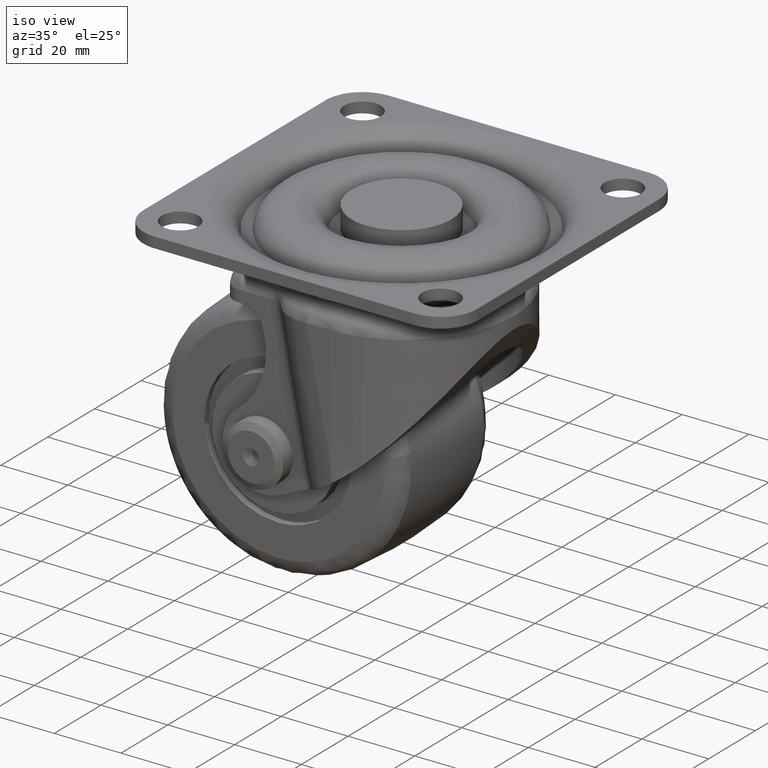
[diagram: clean part render]
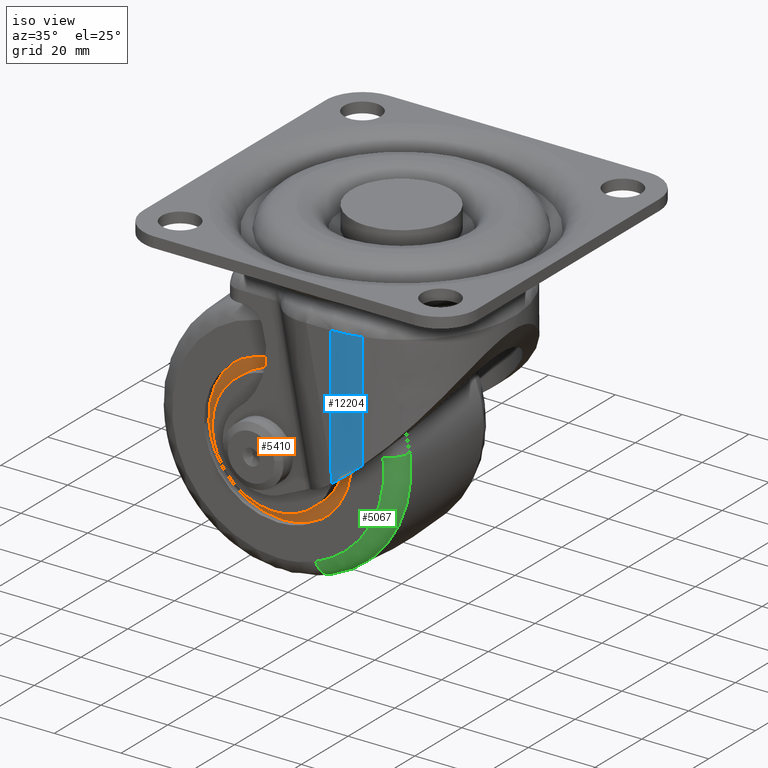
[diagram: same view with three faces highlighted in distinct colors, each labeled with its STEP entity id]
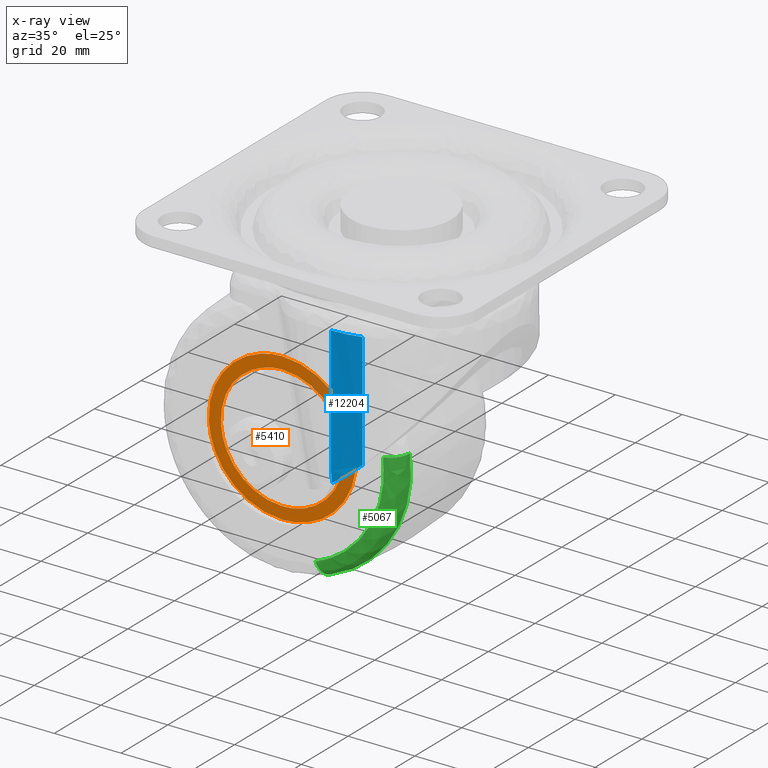
[diagram: x-ray of the same camera — body ghosted, the three highlighted faces saturated]
A machine part, iso view with three faces highlighted in distinct colors.
The next image is the same camera in x-ray (body ghosted, the three faces saturated) — at least one of them is partly hidden behind the body in this view.
Their STEP definitions:

[orange] entity #5410 — the highlighted face is a freeform B-spline surface patch.
#4107=CARTESIAN_POINT('',(21.965375127989400,-18.000000000001990,-59.889111314921713));
#4108=VERTEX_POINT('',#4107);
#4109=CARTESIAN_POINT('',(0.0,-18.0,-84.620001000000002));
#4110=VERTEX_POINT('',#4109);
#4111=CARTESIAN_POINT('',(21.965375127989407,-18.000000000001990,-59.889111314921706));
#4112=CARTESIAN_POINT('',(22.120001000000002,-18.000000000000007,-61.189976917579735));
#4113=CARTESIAN_POINT('',(22.120000999999998,-18.0,-62.500000000000000));
#4114=CARTESIAN_POINT('',(22.120000999999998,-18.000000000000007,-84.620001000000002));
#4115=CARTESIAN_POINT('',(0.0,-18.0,-84.620001000000002));
#4123=(BOUNDED_CURVE()B_SPLINE_CURVE(2,(#4111,#4112,#4113,#4114,#4115),.UNSPECIFIED.,.F.,.U.)B_SPLINE_CURVE_WITH_KNOTS((3,2,3),(0.229562694363073,0.250000000000000,0.500000000000000),.UNSPECIFIED.)CURVE()GEOMETRIC_REPRESENTATION_ITEM()RATIONAL_B_SPLINE_CURVE((0.956027187058341,0.976056207072504,1.0,0.707106781186547,1.0))REPRESENTATION_ITEM(''));
#4124=EDGE_CURVE('',#4108,#4110,#4123,.T.);
#4126=CARTESIAN_POINT('',(-22.078744948460709,-18.000000000000529,-63.850357633929683));
#4127=VERTEX_POINT('',#4126);
#4128=CARTESIAN_POINT('',(0.0,-18.0,-84.620001000000002));
#4129=CARTESIAN_POINT('',(-20.808453247633278,-18.000000000000004,-84.620001000000016));
#4130=CARTESIAN_POINT('',(-22.078744948460713,-18.000000000000536,-63.850357633929661));
#4138=(BOUNDED_CURVE()B_SPLINE_CURVE(2,(#4128,#4129,#4130),.UNSPECIFIED.,.F.,.U.)B_SPLINE_CURVE_WITH_KNOTS((3,3),(0.500000000000000,0.739333244534881),.UNSPECIFIED.)CURVE()GEOMETRIC_REPRESENTATION_ITEM()RATIONAL_B_SPLINE_CURVE((1.0,0.719603662556446,0.976072646681396))REPRESENTATION_ITEM(''));
#4139=EDGE_CURVE('',#4110,#4127,#4138,.T.);
#4206=CARTESIAN_POINT('',(0.0,-18.0,-40.379998999999998));
#4207=VERTEX_POINT('',#4206);
#4208=CARTESIAN_POINT('',(0.0,-18.0,-40.379998999999998));
#4209=CARTESIAN_POINT('',(19.646447256203256,-18.000000000000004,-40.379998999999991));
#4210=CARTESIAN_POINT('',(21.965375127989407,-18.000000000001990,-59.889111314921706));
#4218=(BOUNDED_CURVE()B_SPLINE_CURVE(2,(#4208,#4209,#4210),.UNSPECIFIED.,.F.,.U.)B_SPLINE_CURVE_WITH_KNOTS((3,3),(0.0,0.229562694363073),.UNSPECIFIED.)CURVE()GEOMETRIC_REPRESENTATION_ITEM()RATIONAL_B_SPLINE_CURVE((1.0,0.731050574114043,0.956027187058341))REPRESENTATION_ITEM(''));
#4219=EDGE_CURVE('',#4207,#4108,#4218,.T.);
#4253=CARTESIAN_POINT('',(-22.078744948460713,-18.000000000000536,-63.850357633929661));
#4254=CARTESIAN_POINT('',(-22.120001000000009,-18.000000000000004,-63.175809043264096));
#4255=CARTESIAN_POINT('',(-22.120000999999998,-18.0,-62.500000000000000));
#4256=CARTESIAN_POINT('',(-22.120000999999998,-18.000000000000007,-40.379998999999991));
#4257=CARTESIAN_POINT('',(0.0,-18.0,-40.379998999999998));
#4265=(BOUNDED_CURVE()B_SPLINE_CURVE(2,(#4253,#4254,#4255,#4256,#4257),.UNSPECIFIED.,.F.,.U.)B_SPLINE_CURVE_WITH_KNOTS((3,2,3),(0.739333244534881,0.750000000000000,1.0),.UNSPECIFIED.)CURVE()GEOMETRIC_REPRESENTATION_ITEM()RATIONAL_B_SPLINE_CURVE((0.976072646681396,0.987503118630101,1.0,0.707106781186547,1.0))REPRESENTATION_ITEM(''));
#4266=EDGE_CURVE('',#4127,#4207,#4265,.T.);
#4669=CARTESIAN_POINT('',(18.370676382133698,-18.000000000000011,-60.316367873721930));
#4670=VERTEX_POINT('',#4669);
#4671=CARTESIAN_POINT('',(0.0,-18.0,-81.0));
#4672=VERTEX_POINT('',#4671);
#4673=CARTESIAN_POINT('',(18.370676382133741,-18.000000000000004,-60.316367873721916));
#4674=CARTESIAN_POINT('',(18.500000000000007,-18.0,-61.404354400297372));
#4675=CARTESIAN_POINT('',(18.500000000000000,-18.0,-62.500000000000000));
#4676=CARTESIAN_POINT('',(18.500000000000000,-18.000000000000007,-81.0));
#4677=CARTESIAN_POINT('',(0.0,-18.0,-81.0));
#4685=(BOUNDED_CURVE()B_SPLINE_CURVE(2,(#4673,#4674,#4675,#4676,#4677),.UNSPECIFIED.,.F.,.U.)B_SPLINE_CURVE_WITH_KNOTS((3,2,3),(0.229562484692005,0.250000000000000,0.500000000000000),.UNSPECIFIED.)CURVE()GEOMETRIC_REPRESENTATION_ITEM()RATIONAL_B_SPLINE_CURVE((0.956026776094012,0.976055961427569,1.0,0.707106781186548,1.0))REPRESENTATION_ITEM(''));
#4686=EDGE_CURVE('',#4670,#4672,#4685,.T.);
#4727=CARTESIAN_POINT('',(-18.465495261800470,-17.999999999998941,-63.629373603298710));
#4728=VERTEX_POINT('',#4727);
#4734=CARTESIAN_POINT('',(0.0,-18.0,-81.0));
#4735=CARTESIAN_POINT('',(-17.403085256178599,-17.999999999999996,-80.999999999999986));
#4736=CARTESIAN_POINT('',(-18.465495261800463,-17.999999999998934,-63.629373603298710));
#4744=(BOUNDED_CURVE()B_SPLINE_CURVE(2,(#4734,#4735,#4736),.UNSPECIFIED.,.F.,.U.)B_SPLINE_CURVE_WITH_KNOTS((3,3),(0.500000000000000,0.739333190037824),.UNSPECIFIED.)CURVE()GEOMETRIC_REPRESENTATION_ITEM()RATIONAL_B_SPLINE_CURVE((1.0,0.719603726403721,0.976072529883568))REPRESENTATION_ITEM(''));
#4745=EDGE_CURVE('',#4672,#4728,#4744,.T.);
#4768=CARTESIAN_POINT('',(0.0,-18.0,-44.0));
#4769=VERTEX_POINT('',#4768);
#4770=CARTESIAN_POINT('',(0.0,-18.0,-44.0));
#4771=CARTESIAN_POINT('',(16.431229824364024,-18.000000000000004,-44.0));
#4772=CARTESIAN_POINT('',(18.370676382133741,-18.000000000000004,-60.316367873721916));
#4780=(BOUNDED_CURVE()B_SPLINE_CURVE(2,(#4770,#4771,#4772),.UNSPECIFIED.,.F.,.U.)B_SPLINE_CURVE_WITH_KNOTS((3,3),(0.0,0.229562484692005),.UNSPECIFIED.)CURVE()GEOMETRIC_REPRESENTATION_ITEM()RATIONAL_B_SPLINE_CURVE((1.0,0.731050819758979,0.956026776094012))REPRESENTATION_ITEM(''));
#4781=EDGE_CURVE('',#4769,#4670,#4780,.T.);
#4783=CARTESIAN_POINT('',(-18.465495261800463,-17.999999999998934,-63.629373603298710));
#4784=CARTESIAN_POINT('',(-18.500000000000004,-17.999999999999996,-63.065213897800156));
#4785=CARTESIAN_POINT('',(-18.500000000000000,-18.0,-62.500000000000000));
#4786=CARTESIAN_POINT('',(-18.500000000000000,-18.000000000000007,-43.999999999999993));
#4787=CARTESIAN_POINT('',(0.0,-18.0,-44.0));
#4795=(BOUNDED_CURVE()B_SPLINE_CURVE(2,(#4783,#4784,#4785,#4786,#4787),.UNSPECIFIED.,.F.,.U.)B_SPLINE_CURVE_WITH_KNOTS((3,2,3),(0.739333190037824,0.750000000000000,1.0),.UNSPECIFIED.)CURVE()GEOMETRIC_REPRESENTATION_ITEM()RATIONAL_B_SPLINE_CURVE((0.976072529883568,0.987503054782827,1.0,0.707106781186548,1.0))REPRESENTATION_ITEM(''));
#4796=EDGE_CURVE('',#4728,#4769,#4795,.T.);
#5393=CARTESIAN_POINT('',(-24.329252294165212,-18.0,-38.170208909378282));
#5394=CARTESIAN_POINT('',(-24.329252294165212,-18.0,-86.829790299548847));
#5395=CARTESIAN_POINT('',(24.329386776555019,-18.0,-38.170208909378282));
#5396=CARTESIAN_POINT('',(24.329386776555019,-18.0,-86.829790299548847));
#5397=B_SPLINE_SURFACE_WITH_KNOTS('',1,1,((#5393,#5395),(#5394,#5396)),.UNSPECIFIED.,.F.,.F.,.U.,(2,2),(2,2),(0.0,48.659581390170572),(0.0,48.658639070720227),.UNSPECIFIED.);
#5398=ORIENTED_EDGE('',*,*,#4266,.F.);
#5399=ORIENTED_EDGE('',*,*,#4139,.F.);
#5400=ORIENTED_EDGE('',*,*,#4124,.F.);
#5401=ORIENTED_EDGE('',*,*,#4219,.F.);
#5402=EDGE_LOOP('',(#5398,#5399,#5400,#5401));
#5403=FACE_OUTER_BOUND('',#5402,.T.);
#5404=ORIENTED_EDGE('',*,*,#4745,.T.);
#5405=ORIENTED_EDGE('',*,*,#4796,.T.);
#5406=ORIENTED_EDGE('',*,*,#4781,.T.);
#5407=ORIENTED_EDGE('',*,*,#4686,.T.);
#5408=EDGE_LOOP('',(#5404,#5405,#5406,#5407));
#5409=FACE_BOUND('',#5408,.T.);
#5410=ADVANCED_FACE('',(#5403,#5409),#5397,.T.);

[blue] entity #12204 — the highlighted face is a freeform B-spline surface patch.
#11678=CARTESIAN_POINT('',(16.846150713636799,-31.608555000000450,-27.884508667319949));
#11679=VERTEX_POINT('',#11678);
#11730=CARTESIAN_POINT('',(8.384951359813460,-32.873505000000037,-26.239818121248199));
#11731=VERTEX_POINT('',#11730);
#11745=CARTESIAN_POINT('',(16.846150713636810,-31.608555000000429,-27.884508667319899));
#11746=CARTESIAN_POINT('',(12.706663533629607,-32.873505000000051,-27.079873869598469));
#11747=CARTESIAN_POINT('',(8.384951359813460,-32.873505000000037,-26.239818121248199));
#11755=(BOUNDED_CURVE()B_SPLINE_CURVE(2,(#11745,#11746,#11747),.UNSPECIFIED.,.F.,.U.)CURVE()GEOMETRIC_REPRESENTATION_ITEM()QUASI_UNIFORM_CURVE()RATIONAL_B_SPLINE_CURVE((1.0,0.989402597530452,1.0))REPRESENTATION_ITEM(''));
#11756=EDGE_CURVE('',#11679,#11731,#11755,.T.);
#12153=CARTESIAN_POINT('',(9.180237254773138,-31.480779292694891,-69.497307128945096));
#12154=CARTESIAN_POINT('',(17.455385613322715,-31.480779292694891,-26.925359408218792));
#12155=CARTESIAN_POINT('',(4.642362051979773,-32.940729517618010,-68.615233544197707));
#12156=CARTESIAN_POINT('',(12.917510410529344,-32.940729517618010,-26.043285823471418));
#12157=CARTESIAN_POINT('',(-0.115934905980662,-32.870342762016385,-67.690314310540288));
#12158=CARTESIAN_POINT('',(8.159213452568912,-32.870342762016385,-25.118366589814016));
#12166=(BOUNDED_SURFACE()B_SPLINE_SURFACE(1,2,((#12153,#12155,#12157),(#12154,#12156,#12158)),.UNSPECIFIED.,.F.,.F.,.U.)B_SPLINE_SURFACE_WITH_KNOTS((2,2),(3,3),(0.0,43.368753879864457),(0.0,9.633245544133651),.UNSPECIFIED.)GEOMETRIC_REPRESENTATION_ITEM()RATIONAL_B_SPLINE_SURFACE(((0.998901637062796,0.984527455242017,0.995699260660137),(0.998901637062796,0.984527455242017,0.995699260660137)))REPRESENTATION_ITEM('')SURFACE());
#12167=CARTESIAN_POINT('',(10.225160935657501,-31.608555000000411,-61.946548219321699));
#12168=VERTEX_POINT('',#12167);
#12169=CARTESIAN_POINT('',(16.846150713636799,-31.608555000000450,-27.884508667319949));
#12170=CARTESIAN_POINT('',(10.225160935657501,-31.608555000000411,-61.946548219321699));
#12171=QUASI_UNIFORM_CURVE('',1,(#12169,#12170),.UNSPECIFIED.,.F.,.U.);
#12172=EDGE_CURVE('',#11679,#12168,#12171,.T.);
#12173=ORIENTED_EDGE('',*,*,#12172,.F.);
#12174=ORIENTED_EDGE('',*,*,#11756,.T.);
#12175=CARTESIAN_POINT('',(1.126497264450048,-32.873505000000037,-63.581327287286094));
#12176=VERTEX_POINT('',#12175);
#12177=CARTESIAN_POINT('',(1.126497264450048,-32.873505000000037,-63.581327287286094));
#12178=CARTESIAN_POINT('',(8.384951359813460,-32.873505000000037,-26.239818121248199));
#12179=QUASI_UNIFORM_CURVE('',1,(#12177,#12178),.UNSPECIFIED.,.F.,.U.);
#12180=EDGE_CURVE('',#12176,#11731,#12179,.T.);
#12181=ORIENTED_EDGE('',*,*,#12180,.F.);
#12182=CARTESIAN_POINT('',(0.869152498306460,-32.871255743816292,-66.830505634235706));
#12183=VERTEX_POINT('',#12182);
#12184=CARTESIAN_POINT('',(0.869152498306464,-32.871255743816292,-66.830505634235706));
#12185=CARTESIAN_POINT('',(0.954932049503812,-32.872755327414083,-65.747446713772618));
#12186=CARTESIAN_POINT('',(1.040714612332105,-32.873505000000037,-64.664387242552792));
#12187=CARTESIAN_POINT('',(1.126497264450048,-32.873505000000037,-63.581327287286094));
#12188=QUASI_UNIFORM_CURVE('',3,(#12184,#12185,#12186,#12187),.UNSPECIFIED.,.F.,.U.);
#12189=EDGE_CURVE('',#12183,#12176,#12188,.T.);
#12190=ORIENTED_EDGE('',*,*,#12189,.F.);
#12191=CARTESIAN_POINT('',(10.225160935657501,-31.608555000000411,-61.946548219321699));
#12192=CARTESIAN_POINT('',(8.727807287374171,-31.998732954269581,-62.832808981237257));
#12193=CARTESIAN_POINT('',(7.200460478989414,-32.303975616385287,-63.683572217751852));
#12194=CARTESIAN_POINT('',(4.862377262911631,-32.624451725199577,-64.905080626830639));
#12195=CARTESIAN_POINT('',(4.075159904991482,-32.708297330008577,-65.303141312962822));
#12196=CARTESIAN_POINT('',(2.484494017341742,-32.827248644591727,-66.080770493135731));
#12197=CARTESIAN_POINT('',(1.681046488873793,-32.862360827181497,-66.460339231769751));
#12198=CARTESIAN_POINT('',(0.869152498306462,-32.871255743816292,-66.830505634235706));
#12199=B_SPLINE_CURVE_WITH_KNOTS('',3,(#12191,#12192,#12193,#12194,#12195,#12196,#12197,#12198),.UNSPECIFIED.,.F.,.U.,(4,2,2,4),(0.0,0.500000000000000,0.750000000000000,1.0),.UNSPECIFIED.);
#12200=EDGE_CURVE('',#12168,#12183,#12199,.T.);
#12201=ORIENTED_EDGE('',*,*,#12200,.F.);
#12202=EDGE_LOOP('',(#12173,#12174,#12181,#12190,#12201));
#12203=FACE_OUTER_BOUND('',#12202,.T.);
#12204=ADVANCED_FACE('',(#12203),#12166,.T.);

[green] entity #5067 — the highlighted face is a freeform B-spline surface patch.
#4868=CARTESIAN_POINT('',(11.232952755055830,-20.0,-92.166630667084220));
#4869=VERTEX_POINT('',#4868);
#4902=CARTESIAN_POINT('',(31.471908198080541,-20.0,-58.524173398414412));
#4903=VERTEX_POINT('',#4902);
#4917=CARTESIAN_POINT('',(36.405869162981652,-15.517249322075170,-57.900869176843671));
#4918=VERTEX_POINT('',#4917);
#4919=CARTESIAN_POINT('',(31.471908198080545,-20.0,-58.524173398414412));
#4920=CARTESIAN_POINT('',(35.943303062685651,-20.000000123375205,-57.959304864582997));
#4921=CARTESIAN_POINT('',(36.405869162981645,-15.517249322075168,-57.900869176843671));
#4929=(BOUNDED_CURVE()B_SPLINE_CURVE(2,(#4919,#4920,#4921),.UNSPECIFIED.,.F.,.U.)B_SPLINE_CURVE_WITH_KNOTS((3,3),(-1.709105729701038,-0.280801625540067),.UNSPECIFIED.)CURVE()GEOMETRIC_REPRESENTATION_ITEM()RATIONAL_B_SPLINE_CURVE((0.888415796562370,0.661099642869180,0.891651169076073))REPRESENTATION_ITEM(''));
#4930=EDGE_CURVE('',#4903,#4918,#4929,.T.);
#4979=CARTESIAN_POINT('',(12.993956406167220,-15.517251932771419,-96.817581280236965));
#4980=VERTEX_POINT('',#4979);
#4994=CARTESIAN_POINT('',(11.232952755055832,-20.000000000000007,-92.166630667084220));
#4995=CARTESIAN_POINT('',(12.828869319624534,-20.000000120937084,-96.381541930463229));
#4996=CARTESIAN_POINT('',(12.993956406167211,-15.517251932771412,-96.817581280236965));
#5004=(BOUNDED_CURVE()B_SPLINE_CURVE(2,(#4994,#4995,#4996),.UNSPECIFIED.,.F.,.U.)B_SPLINE_CURVE_WITH_KNOTS((3,3),(-1.709105730102363,-0.280802188276015),.UNSPECIFIED.)CURVE()GEOMETRIC_REPRESENTATION_ITEM()RATIONAL_B_SPLINE_CURVE((0.818471090013851,0.609051550605110,0.821451575144848))REPRESENTATION_ITEM(''));
#5005=EDGE_CURVE('',#4869,#4980,#5004,.T.);
#5010=CARTESIAN_POINT('',(31.120751254499872,-19.989068278055246,-58.381057470213150));
#5011=CARTESIAN_POINT('',(31.132392864860414,-19.989068278055242,-58.473210305157309));
#5012=CARTESIAN_POINT('',(34.243551184355013,-19.989068278055242,-83.100564272720945));
#5013=CARTESIAN_POINT('',(11.021376710715867,-19.989068278055253,-91.893396038416782));
#5014=CARTESIAN_POINT('',(10.926982697683959,-19.989068278055246,-91.929137337200856));
#5015=CARTESIAN_POINT('',(36.209238556923552,-20.329037295565222,-57.707578009809602));
#5016=CARTESIAN_POINT('',(36.222783662029926,-20.329037295565211,-57.814798557183352));
#5017=CARTESIAN_POINT('',(39.842640806791131,-20.329037295565218,-86.468918361195776));
#5018=CARTESIAN_POINT('',(12.823458382494170,-20.329037295565222,-96.699447193591482));
#5019=CARTESIAN_POINT('',(12.713630206809515,-20.329037295565229,-96.741032475496269));
#5020=CARTESIAN_POINT('',(36.401680725320894,-15.188682227280795,-57.682107601802613));
#5021=CARTESIAN_POINT('',(36.415297818944630,-15.188682227280800,-57.789897996968151));
#5022=CARTESIAN_POINT('',(40.054393511269623,-15.188682227280800,-86.596306586063207));
#5023=CARTESIAN_POINT('',(12.891611545494289,-15.188682227280802,-96.881207872308337));
#5024=CARTESIAN_POINT('',(12.781199663188836,-15.188682227280802,-96.923014168576913));
#5032=(BOUNDED_SURFACE()B_SPLINE_SURFACE(2,2,((#5010,#5015,#5020),(#5011,#5016,#5021),(#5012,#5017,#5022),(#5013,#5018,#5023),(#5014,#5019,#5024)),.UNSPECIFIED.,.F.,.F.,.U.)B_SPLINE_SURFACE_WITH_KNOTS((3,1,1,3),(3,3),(0.0,0.254398897780944,51.134145009181729,51.388578378298412),(0.0,8.451173625761395),.UNSPECIFIED.)GEOMETRIC_REPRESENTATION_ITEM()RATIONAL_B_SPLINE_SURFACE(((0.914511516670742,0.638654192526186,0.918078869114391),(0.913389289335669,0.637870478839209,0.916952264163122),(0.687821742520533,0.480344130788636,0.690504817068252),(0.841207739036445,0.587462092633794,0.844489146026695),(0.841970956834508,0.587995090018363,0.845255341006376)))REPRESENTATION_ITEM('')SURFACE());
#5033=CARTESIAN_POINT('',(31.471908198080538,-20.000000000000004,-58.524173398414412));
#5034=CARTESIAN_POINT('',(31.722046000000098,-20.000000000000004,-60.504218030897526));
#5035=CARTESIAN_POINT('',(31.722046000000098,-20.0,-62.500000000000000));
#5036=CARTESIAN_POINT('',(31.722046000000091,-20.000000000000004,-84.408654402254641));
#5037=CARTESIAN_POINT('',(11.232952755055834,-19.999999999999996,-92.166630667084206));
#5045=(BOUNDED_CURVE()B_SPLINE_CURVE(2,(#5033,#5034,#5035,#5036,#5037),.UNSPECIFIED.,.F.,.U.)B_SPLINE_CURVE_WITH_KNOTS((3,2,3),(0.228321256477232,0.250000000000000,0.439864366381400),.UNSPECIFIED.)CURVE()GEOMETRIC_REPRESENTATION_ITEM()RATIONAL_B_SPLINE_CURVE((0.953608357583577,0.974601772119141,1.0,0.777560058370301,0.892987465344109))REPRESENTATION_ITEM(''));
#5046=EDGE_CURVE('',#4903,#4869,#5045,.T.);
#5047=ORIENTED_EDGE('',*,*,#5046,.T.);
#5048=ORIENTED_EDGE('',*,*,#5005,.T.);
#5049=CARTESIAN_POINT('',(36.405869162981645,-15.517249322075170,-57.900869176843671));
#5050=CARTESIAN_POINT('',(36.695222013816363,-15.517249462452620,-60.191332280644524));
#5051=CARTESIAN_POINT('',(36.695222085453473,-15.517249606268200,-62.499999908030482));
#5052=CARTESIAN_POINT('',(36.695222871848955,-15.517251185002037,-87.843371113671779));
#5053=CARTESIAN_POINT('',(12.993956406167221,-15.517251932771416,-96.817581280236965));
#5061=(BOUNDED_CURVE()B_SPLINE_CURVE(2,(#5049,#5050,#5051,#5052,#5053),.UNSPECIFIED.,.F.,.U.)B_SPLINE_CURVE_WITH_KNOTS((3,2,3),(0.228321257227901,0.250000000000000,0.439864484046886),.UNSPECIFIED.)CURVE()GEOMETRIC_REPRESENTATION_ITEM()RATIONAL_B_SPLINE_CURVE((0.953608359037453,0.974601772998604,1.0,0.777559920516609,0.892987608412916))REPRESENTATION_ITEM(''));
#5062=EDGE_CURVE('',#4918,#4980,#5061,.T.);
#5063=ORIENTED_EDGE('',*,*,#5062,.F.);
#5064=ORIENTED_EDGE('',*,*,#4930,.F.);
#5065=EDGE_LOOP('',(#5047,#5048,#5063,#5064));
#5066=FACE_OUTER_BOUND('',#5065,.T.);
#5067=ADVANCED_FACE('',(#5066),#5032,.T.);